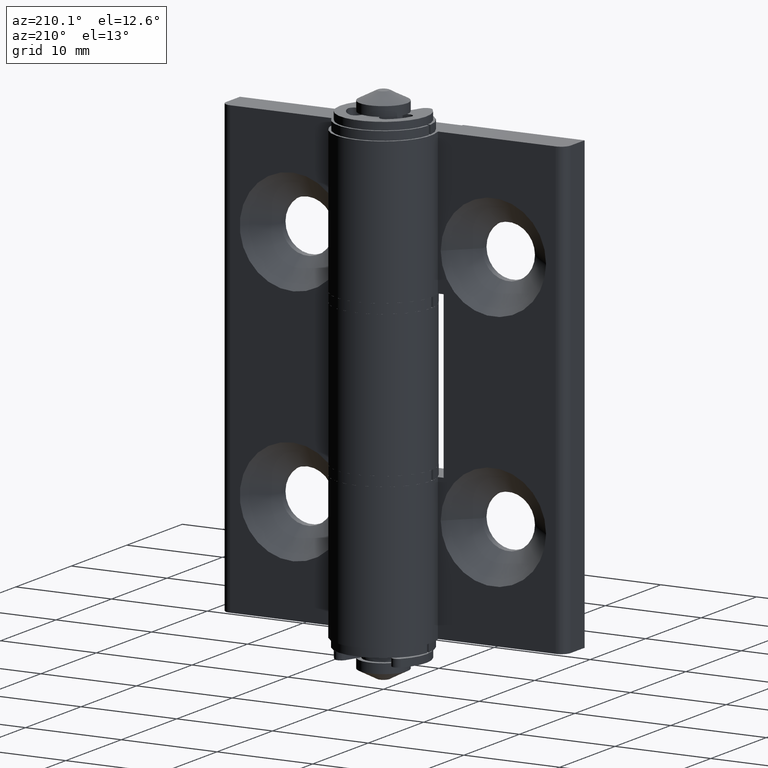
[diagram: clean part render]
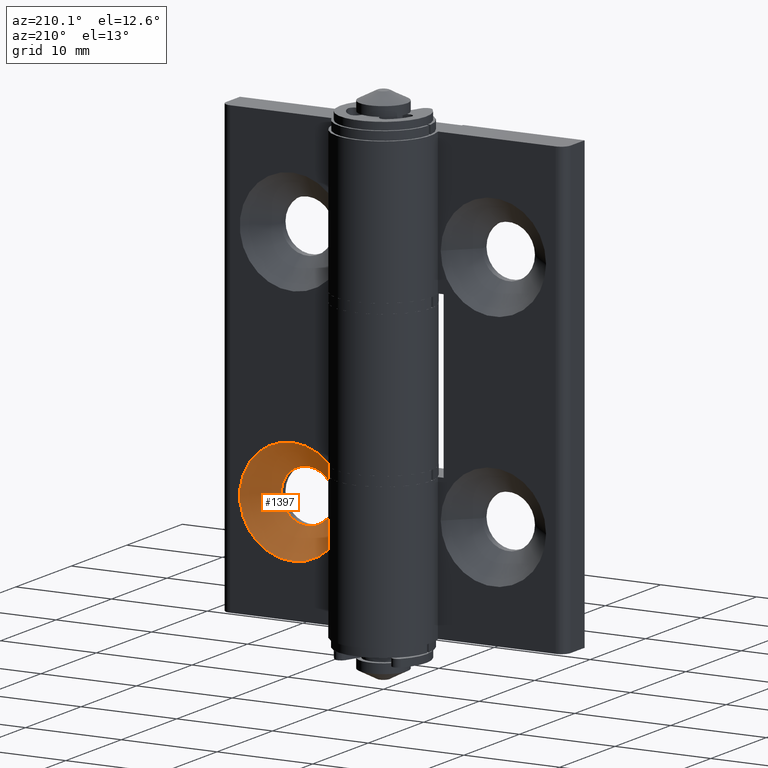
[diagram: same view with one face highlighted and labeled with its STEP entity id]
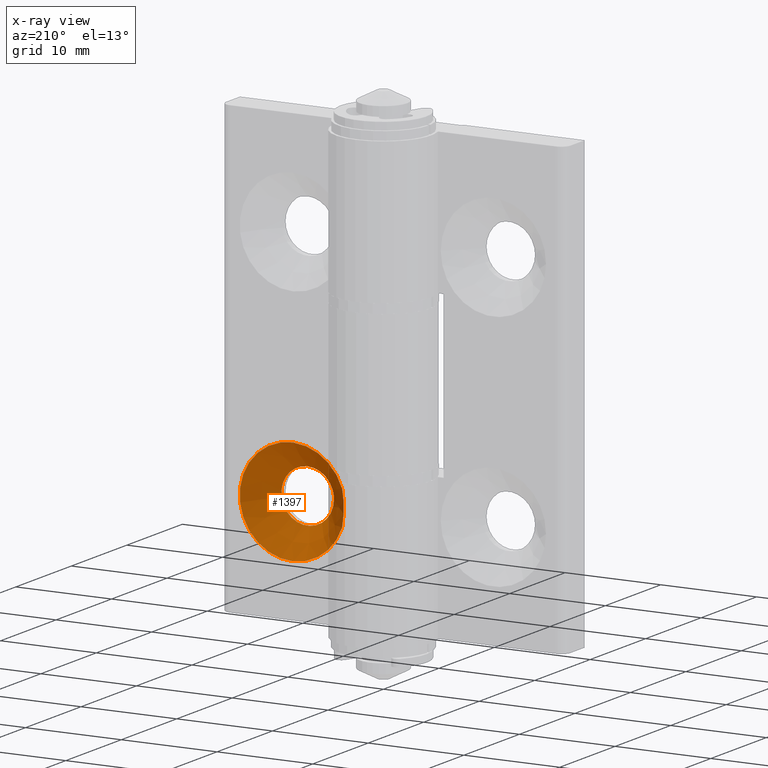
[diagram: x-ray of the same camera — body ghosted, the highlighted face saturated]
A machine part, auxiliary view. The second image highlights one B-rep face of the part: STEP entity #1397.
The next image is the same camera in x-ray: the body ghosted, the highlighted face saturated — about 11% of this face is hidden behind the body in this view.
In plain terms, the highlighted conical surface has half-angle 45 deg.
Its self-contained STEP definition (entity closure, byte-faithful):
#51=(
BOUNDED_CURVE()
B_SPLINE_CURVE(2,(#2227,#2228,#2229),.UNSPECIFIED.,.F.,.F.)
B_SPLINE_CURVE_WITH_KNOTS((3,3),(-0.617602414885216,-0.204589776758563),
 .UNSPECIFIED.)
CURVE()
GEOMETRIC_REPRESENTATION_ITEM()
RATIONAL_B_SPLINE_CURVE((1.09345794392523,1.15654205607477,1.09345794392523))
REPRESENTATION_ITEM('')
);
#79=CONICAL_SURFACE('',#1515,4.125,0.785398163397448);
#135=FACE_BOUND('',#283,.T.);
#180=FACE_OUTER_BOUND('',#282,.T.);
#282=EDGE_LOOP('',(#1099));
#283=EDGE_LOOP('',(#1100,#1101));
#376=CIRCLE('',#1509,5.5);
#379=CIRCLE('',#1516,2.75);
#688=VERTEX_POINT('',#2224);
#689=VERTEX_POINT('',#2226);
#698=VERTEX_POINT('',#2262);
#833=EDGE_CURVE('',#689,#688,#51,.F.);
#845=EDGE_CURVE('',#689,#688,#376,.T.);
#850=EDGE_CURVE('',#698,#698,#379,.T.);
#1099=ORIENTED_EDGE('',*,*,#850,.F.);
#1100=ORIENTED_EDGE('',*,*,#833,.T.);
#1101=ORIENTED_EDGE('',*,*,#845,.F.);
#1397=ADVANCED_FACE('',(#180,#135),#79,.F.);
#1509=AXIS2_PLACEMENT_3D('',#2250,#1783,#1784);
#1515=AXIS2_PLACEMENT_3D('',#2261,#1797,#1798);
#1516=AXIS2_PLACEMENT_3D('',#2263,#1799,#1800);
#1783=DIRECTION('center_axis',(0.,-1.,0.));
#1784=DIRECTION('ref_axis',(1.,0.,0.));
#1797=DIRECTION('center_axis',(0.,1.,0.));
#1798=DIRECTION('ref_axis',(1.,0.,0.));
#1799=DIRECTION('center_axis',(0.,1.,0.));
#1800=DIRECTION('ref_axis',(1.,0.,0.));
#2224=CARTESIAN_POINT('',(5.3,-1.7,-10.7083527132831));
#2226=CARTESIAN_POINT('',(5.3,-1.7,-14.2916472867169));
#2227=CARTESIAN_POINT('Ctrl Pts',(5.3,-1.7,-10.7083527132831));
#2228=CARTESIAN_POINT('Ctrl Pts',(5.3,-2.28363636363637,-12.5));
#2229=CARTESIAN_POINT('Ctrl Pts',(5.3,-1.7,-14.2916472867169));
#2250=CARTESIAN_POINT('Origin',(10.5,-1.7,-12.5));
#2261=CARTESIAN_POINT('Origin',(10.5,-3.075,-12.5));
#2262=CARTESIAN_POINT('',(7.75,-4.45,-12.5));
#2263=CARTESIAN_POINT('Origin',(10.5,-4.44999999999999,-12.5));